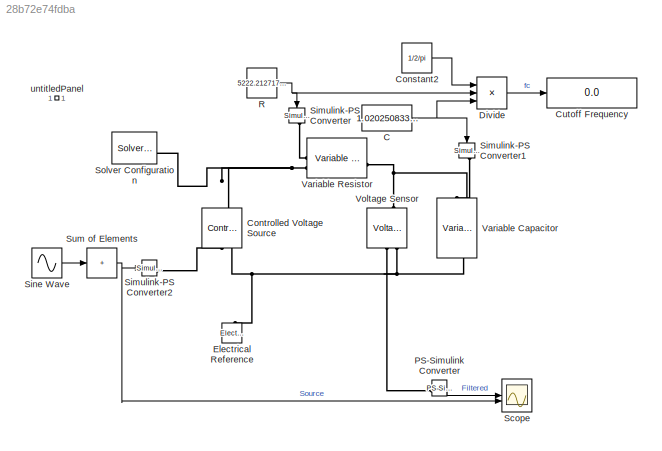
MODEL slx_28b72e74fdba
KIND model
CONFIG AbsTol = 1e-3
CONFIG EnableMultiTasking = off
CONFIG FixedStep = auto
CONFIG MaxStep = auto
CONFIG MinStep = auto
CONFIG RelTol = 1e-3
CONFIG SampleTimeConstraint = Unconstrained
CONFIG SolverName = VariableStepAuto
CONFIG StartTime = 0.0
CONFIG StopTime = inf
BLOCK [Constant] C
  Value = 1.02025083385353e-06
BLOCK [Constant] Constant2
  Value = 1/2/pi
BLOCK [Reference] Controlled Voltage Source  REF=fl_lib/Electrical/Electrical Sources/Controlled Voltage
Source
  NameLocation = right
  SourceBlock = fl_lib/Electrical/Electrical Sources/Controlled Voltage\nSource
  SourceType = Controlled Voltage\nSource
BLOCK [Display] Cutoff Frequency
  Decimation = 1
BLOCK [Product] Divide
  Inputs = *//
BLOCK [Reference] Electrical Reference  REF=fl_lib/Electrical/Electrical Elements/Electrical Reference
  SourceBlock = fl_lib/Electrical/Electrical Elements/Electrical Reference
  SourceType = Electrical Reference
BLOCK [Reference] PS-Simulink Converter  REF=nesl_utility/PS-Simulink
Converter
  SourceBlock = nesl_utility/PS-Simulink\nConverter
  SourceType = PS-Simulink\nConverter
BLOCK [Constant] R
  Value = 5222.212717539438
BLOCK [Scope] Scope
  Floating = off
  NumInputPorts = 2
  ScopeSpecificationString = Simulink.scopes.TimeScopeBlockCfg('CurrentConfiguration', extmgr.ConfigurationSet(extmgr.Configuration('Core','General UI',true),extmgr.Configuration('Core','Source UI',true),extmgr.Configuration('Sources','WiredSimulink',true),extmgr.Configuration('Visuals','Time Domain',true,'SerializedDisplays',{struct('MinYLimReal','-1.34164','MaxYLimReal','1.34164','YLabelReal','','MinYLimMag','0.00000','MaxY...<+1514ch>
BLOCK [Reference] Simulink-PS Converter  REF=nesl_utility/Simulink-PS
Converter
  NameLocation = left
  SourceBlock = nesl_utility/Simulink-PS\nConverter
  SourceType = Simulink-PS\nConverter
BLOCK [Reference] Simulink-PS Converter1  REF=nesl_utility/Simulink-PS
Converter
  NameLocation = right
  SourceBlock = nesl_utility/Simulink-PS\nConverter
  SourceType = Simulink-PS\nConverter
BLOCK [Reference] Simulink-PS Converter2  REF=nesl_utility/Simulink-PS
Converter
  SourceBlock = nesl_utility/Simulink-PS\nConverter
  SourceType = Simulink-PS\nConverter
BLOCK [Sin] Sine Wave
  Amplitude = [1 0.1]
  Frequency = 2*pi*[10 60]
  SampleTime = 0
BLOCK [Reference] Solver Configuration  REF=nesl_utility/Solver
Configuration
  SourceBlock = nesl_utility/Solver\nConfiguration
  SourceType = Solver\nConfiguration
BLOCK [Sum] Sum of Elements
  IconShape = rectangular
  Inputs = +
BLOCK [Reference] Variable Capacitor  REF=ee_lib/Passive/Variable Capacitor
  NameLocation = left
  SourceBlock = ee_lib/Passive/Variable Capacitor
  SourceType = Variable Capacitor
BLOCK [Reference] Variable Resistor  REF=fl_lib/Electrical/Electrical Elements/Variable Resistor
  SourceBlock = fl_lib/Electrical/Electrical Elements/Variable Resistor
  SourceType = Variable Resistor
BLOCK [Reference] Voltage Sensor  REF=fl_lib/Electrical/Electrical Sensors/Voltage Sensor
  NameLocation = right
  SourceBlock = fl_lib/Electrical/Electrical Sensors/Voltage Sensor
  SourceType = Voltage Sensor
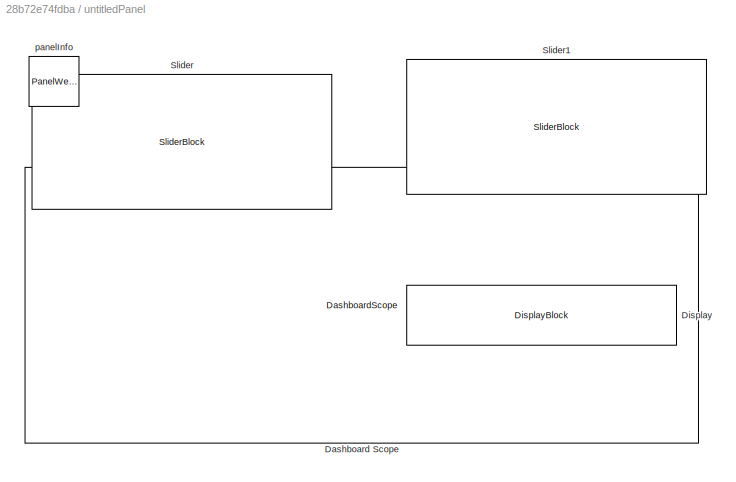
BLOCK [SubSystem] untitledPanel
  IsWebBlockPanel = on
  Tag = HiddenForWebPanel
BLOCK [DashboardScope] untitledPanel/Dashboard Scope
  PanelInfo = {"height":386,"left":11,"panelId":"panelId-89ad8147-c2ec-492f-99dc-ed40cfdb93ef","top":15,"type":"panelChild","version":"2019b","width":682,"zIndex":1500014}
  ScaleAtStop = off
  Tag = HiddenForWebPanel
  TimeSpan = 1
  UpdateMode = Scroll
  Ymax = 2
  Ymin = -2
BLOCK [DisplayBlock] untitledPanel/Display
  Format = Custom
  FormatString = %.0f
  PanelInfo = {"height":52,"left":24,"panelId":"panelId-89ad8147-c2ec-492f-99dc-ed40cfdb93ef","top":602,"type":"panelChild","version":"2019b","width":147,"zIndex":1500010}
  Tag = HiddenForWebPanel
  Transparency = 1
BLOCK [SliderBlock] untitledPanel/Slider
  PanelInfo = {"height":68,"left":15,"panelId":"panelId-89ad8147-c2ec-492f-99dc-ed40cfdb93ef","top":425,"type":"panelChild","version":"2019b","width":677,"zIndex":1500012}
  ScaleMax = 10000
  ScaleMin = 100
  Tag = HiddenForWebPanel
BLOCK [SliderBlock] untitledPanel/Slider1
  PanelInfo = {"height":63,"left":18,"panelId":"panelId-89ad8147-c2ec-492f-99dc-ed40cfdb93ef","top":514,"type":"panelChild","version":"2019b","width":671,"zIndex":1500006}
  ScaleMax = 1e-4
  ScaleMin = 1e-8
  ScaleType = Log
  Tag = HiddenForWebPanel
BLOCK [PanelWebBlock] untitledPanel/panelInfo
  PanelInfo = {"compacted":false,"height":677,"isActiveTab":true,"left":1055,"name":"Panel","panelId":"panelId-89ad8147-c2ec-492f-99dc-ed40cfdb93ef","popoutData":{"height":0,"left":0,"maximized":false,"top":0,"width":0},"popoutMode":"component","tabIndex":0,"tabbedSetId":"tabbedSet8050616155","top":48,"type":"panel","version":"2019b","visible":true,"width":710,"zIndex":1500002}
  PanelSnapshot = iVBORw0KGgoAAAANSUhEUgAAAl8AAAJDCAYAAAA1q3H9AAAACXBIWXMAABnWAAAZ1gEY0crtAAAgAElEQVR4nO3deZhdZWH48ffcbfYtmZlMkkkCYQlEIBggCBQVfxQUCiJaabGPWrStWqC1VWyrdSF1qa3ro/i0v7pvvyJVC1WrVEXBBdlxZZGQhGyTyWT2O3c9vz8qMYaAA5J35sbP5588z51z5nlPTu6db97znjPJ1jS9NQAAEEVmrgcAAPDbRHwBAEQkvgAAIhJfAAARiS8AgIjEFwBAROILACAi8QUAEJH4AgCISHwBAEQkvgAAIhJfAAARiS8AgIjEFwBAROILACAi8QUAEJH4AgCISHwBAEQkvgAAIhJfAAARiS8AgIjEFwBAROILACAi...<+11952ch>
  Tag = HiddenForWebPanel
NET C:1 -> Divide:3, Simulink-PS Converter1:1
LINE Constant2:1 -> Divide:1
LINE Divide:1 -> Cutoff Frequency:1
LINE PS-Simulink Converter:1 -> Scope:1
NET R:1 -> Divide:2, Simulink-PS Converter:1
LINE Sine Wave:1 -> Sum of Elements:1
NET Sum of Elements:1 -> Scope:2, Simulink-PS Converter2:1
PNET net1: Controlled Voltage Source:LConn1 -- Solver Configuration:RConn1 -- Variable Resistor:LConn2
PLINE Controlled Voltage Source:RConn1 -- Simulink-PS Converter2:RConn1
PNET net2: Controlled Voltage Source:RConn2 -- Electrical Reference:LConn1 -- Variable Capacitor:RConn1 -- Voltage Sensor:RConn2
PLINE PS-Simulink Converter:LConn1 -- Voltage Sensor:RConn1
PLINE Simulink-PS Converter1:RConn1 -- Variable Capacitor:LConn1
PLINE Simulink-PS Converter:RConn1 -- Variable Resistor:LConn1
PNET net3: Variable Capacitor:LConn2 -- Variable Resistor:RConn1 -- Voltage Sensor:LConn1
note: NET lines group one-source signal fan-out (src -> all destinations, sorted); 1:1 wires keep LINE; PNET lines group multi-terminal physical nets as a canonical sorted terminal list (undirected conserving connections); 2-terminal nets keep the pairwise PLINE form
